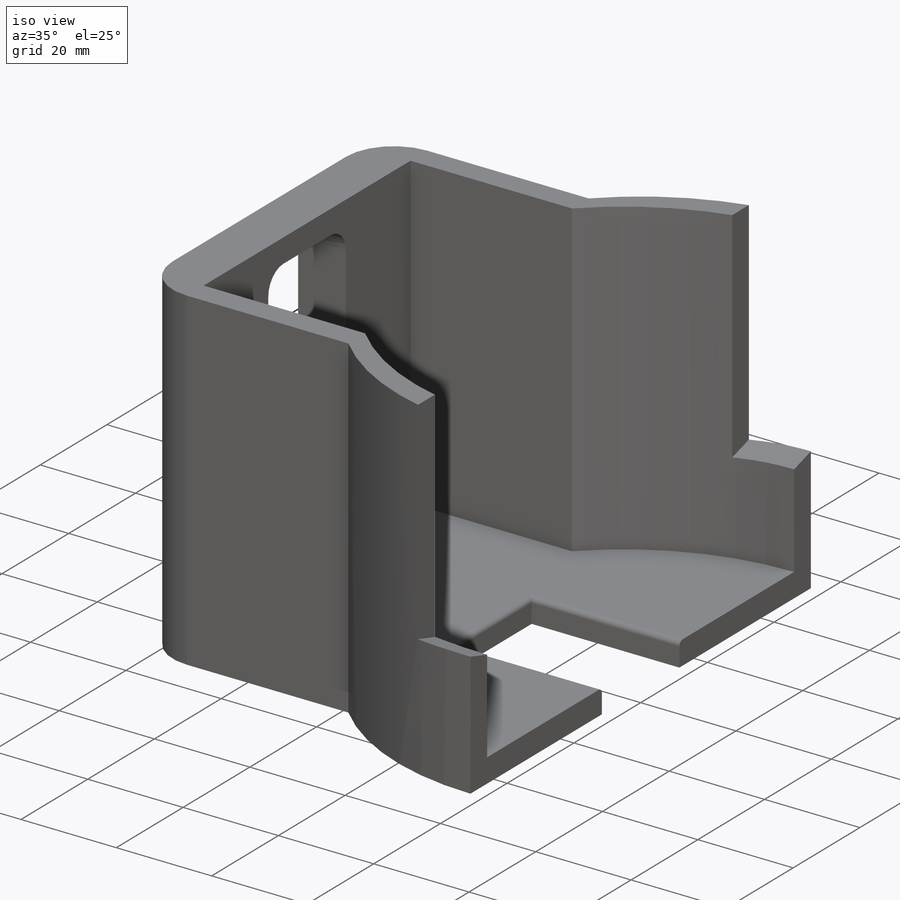
[diagram: iso view]
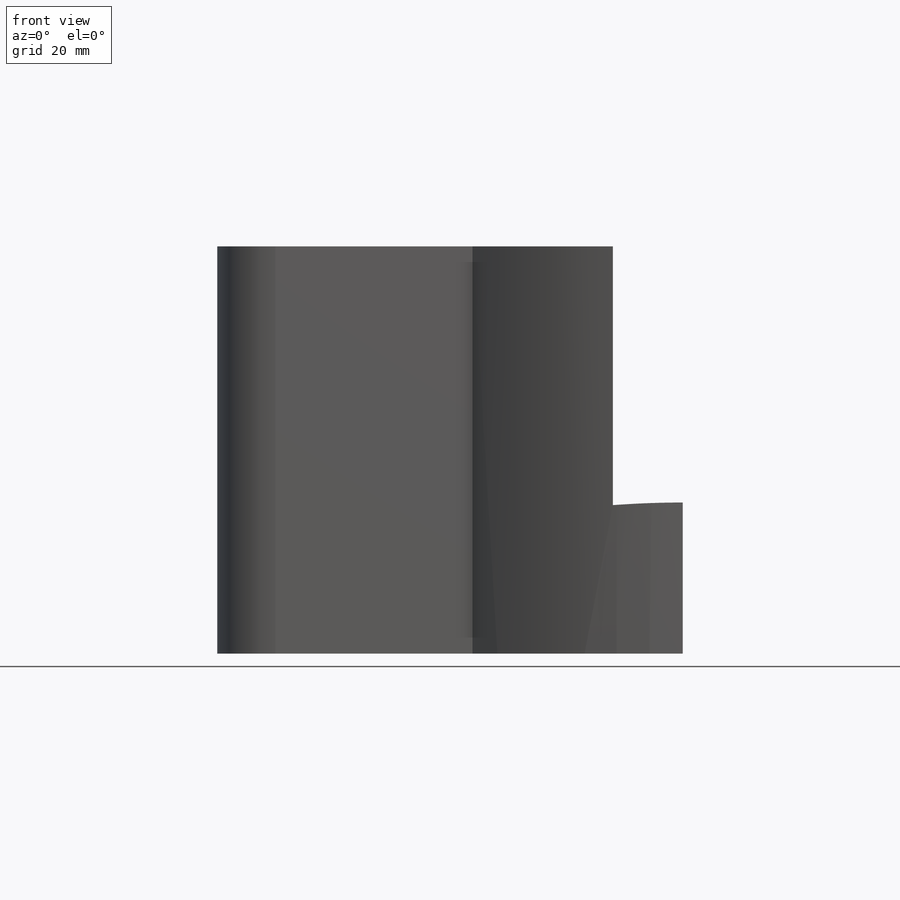
[diagram: front view]
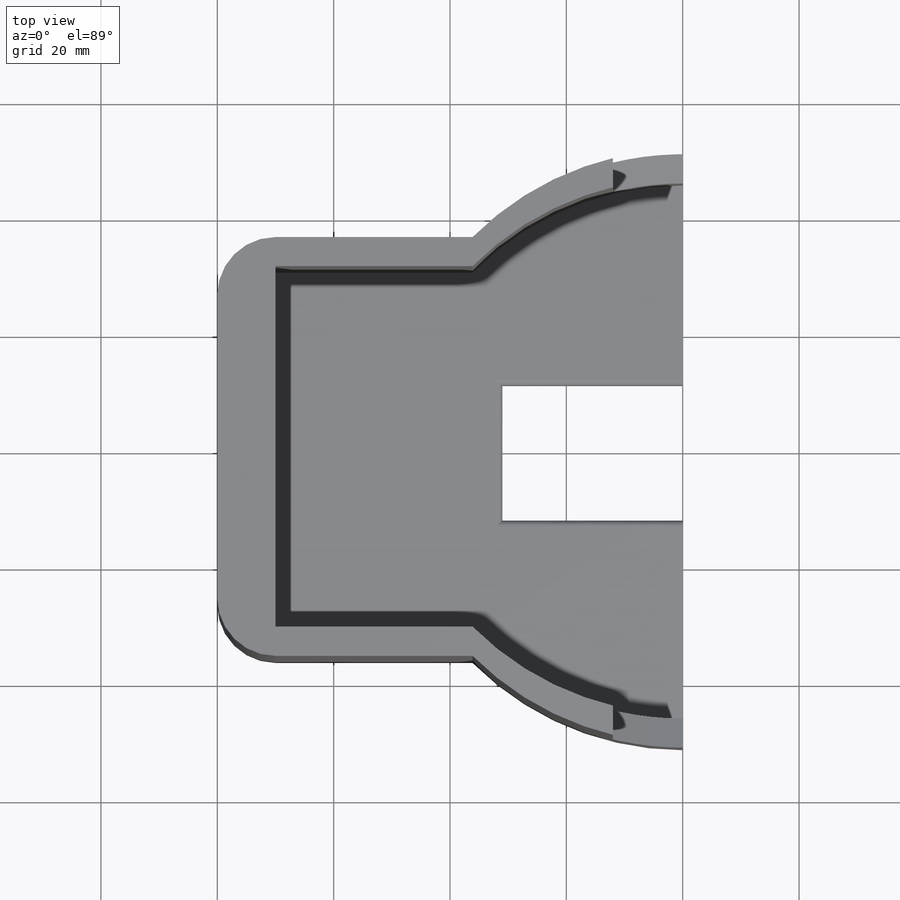
[diagram: top view]
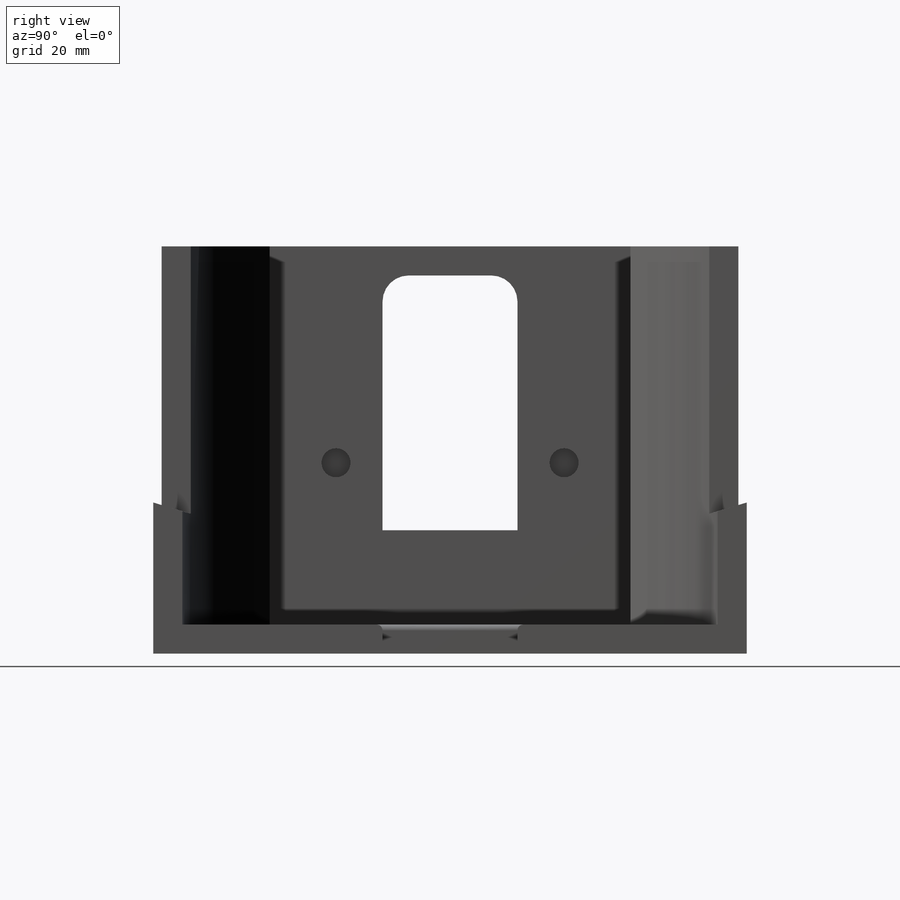
[diagram: right view]
SOLIDWORKS PART (.sldprt)
format: sldprt  version: not decoded by parser v0  size: 370,688 bytes
history: native  units: mm
features: sketch x7, cut_extrude x5, plane x3, extrude x2, fillet x2, material x1 (+9 scaffold rows collapsed)
feature tree (29):
  scaffold x9  (default folders/planes/origin — collapsed)
  material  "Matériau <non spécifié>"
  plane  "Plan de face"
  plane  "Plan de dessus"
  plane  "Plan de droite"
  sketch  "Esquisse1"  dims[c1.D6=102.0mm c1.D1=30.0mm c1.D2=90.0mm c1.D3=10.0mm c1.D4=10.0mm c1.D5=20.0mm c2.D1=10.0mm c2.D2=84.5816mm c3.D1=5.0mm c3.D2=72.0mm c3.D3=80.0mm c3.D4=10.0mm c3.D5=5.0mm c3.D7=5.0mm c3.D8=5.0mm]
  extrude  "Boss.-Extru.5"  Depth=100mm
  sketch  "Esquisse5"  dims[D3=4.3mm D6=4.5mm D7=4.5mm D1=2.0mm D2=11.6mm D4=43.8mm D5=23.2mm D8=12.0mm]
  cut_extrude  "Enlèv. mat.-Extru.1"  Depth=10mm
  sketch  "Esquisse8"
  extrude  "Boss.-Extru.6"  Depth=5mm
  sketch  "Esquisse9"  dims[D1=5.0mm]
  cut_extrude  "Enlèv. mat.-Extru.2"  [1 undecoded]
  sketch  "Esquisse10"  dims[c1.D1=240.0mm c1.D2=120.0mm c1.D3=142.0mm c1.D7=167.0mm c1.D8=120.0mm c1.D9=114.0mm c1.D12=167.0mm c2.D2=167.0mm c3.D2=70.0deg c3.D3=6.0mm c3.D4=22.0mm c3.D5=6.0mm c4.D2=6.0mm c4.D3=60.0mm c4.D4=22.0mm c5.D4=10.0deg c5.D5=22.0mm c6.D5=10.0deg c6.D6=~18.021345mm c7.D6=70.0deg c7.D8=~137.658345mm c7.D9=~161.220346mm c7.D10=~11.749794mm c7.D11=~11.810651mm c7.D12=1.0mm c7.D13=~126.838066mm c8.D12=47.0mm c8.D2=28.0mm c8.D3=10.0mm c8.D4=~16.497778mm c9.D4=~115.478164deg c9.D5=130.0mm c9.D3=37.0mm]
  sketch  "Esquisse11"  dims[c1.D1=300.0mm c1.D3=5.0mm c1.D2=23.5mm c2.D3=~14.370248mm c2.D4=8.0mm c2.D5=39.2mm c2.D6=~27.786046mm c2.D7=50.0mm]
  cut_extrude  "Enlèv. mat.-Extru.9"  Depth=5mm
  cut_extrude  "Enlèv. mat.-Extru.12"  Depth=12mm
  fillet  "Congé1"  Radius=10mm
  sketch  "Esquisse12"  dims[c1.D3=4.3mm c1.D6=4.5mm c1.D7=4.5mm c1.D1=2.0mm c1.D2=11.6mm c1.D4=43.8mm c1.D5=23.2mm c1.D8=12.0mm c1.D9=~16.833831mm c1.D10=32.0699mm c2.D9=23.2mm c2.D10=31.0mm c2.D2=23.2mm]
  cut_extrude  "Enlèv. mat.-Extru.13"  Depth=10mm
  fillet  "Congé2"  Radius=1mm
decode coverage: 14 of 16 modeling features carry decoded parameters
note: ~ marks probable driven/reference dimensions
note: 1 parameter value undecoded
note: suppression state not decoded; provenance and decode notes live in map.json
